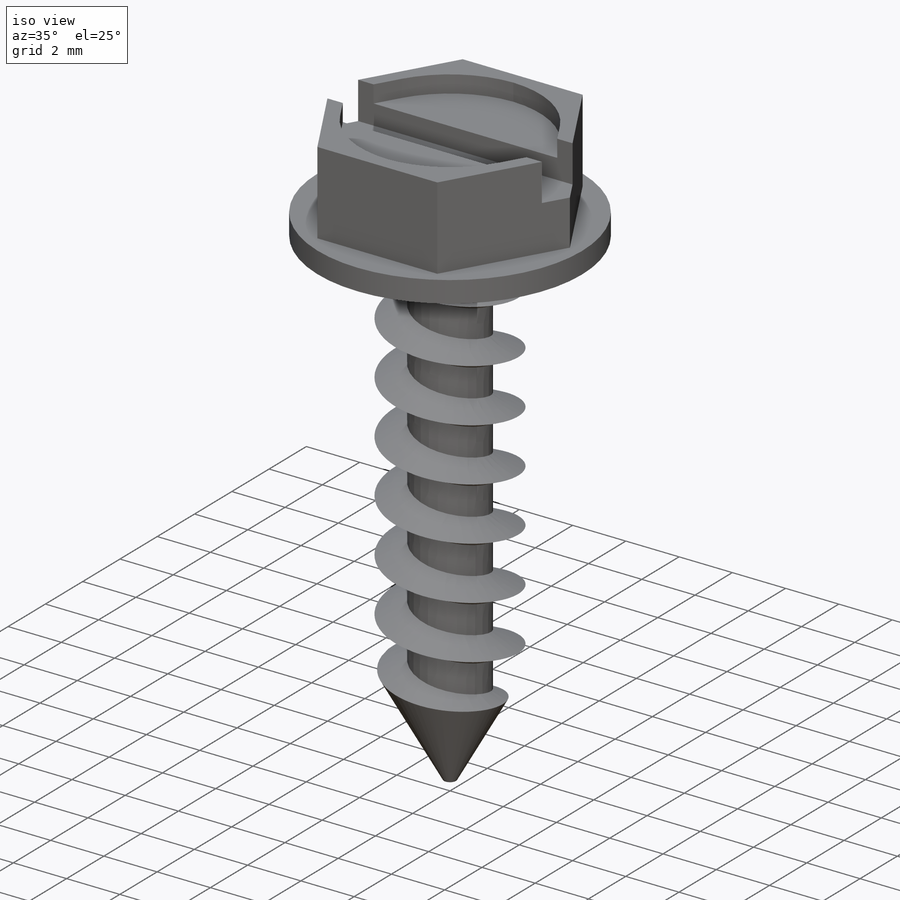
[diagram: iso view]
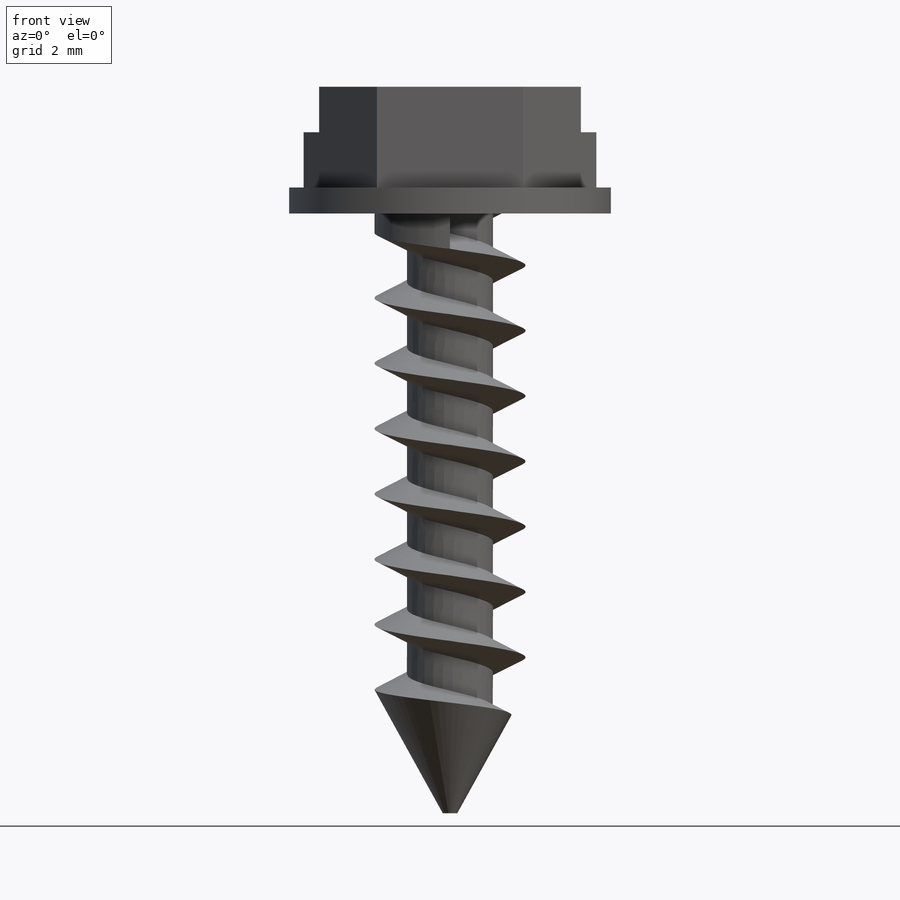
[diagram: front view]
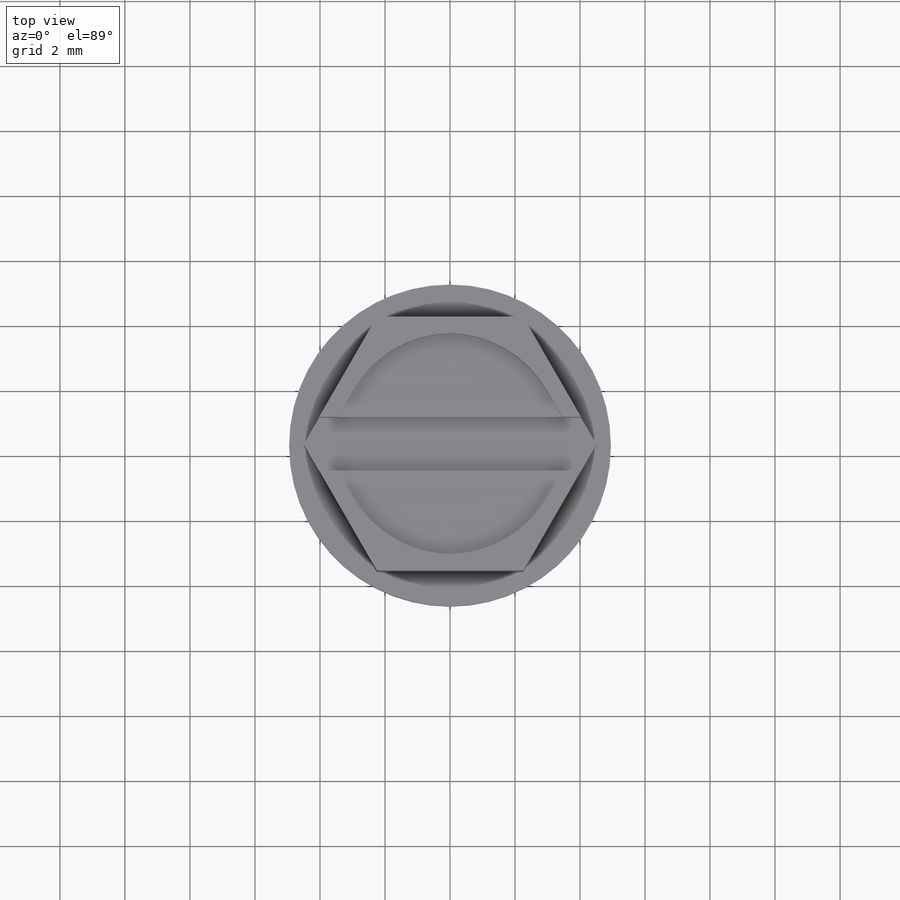
[diagram: top view]
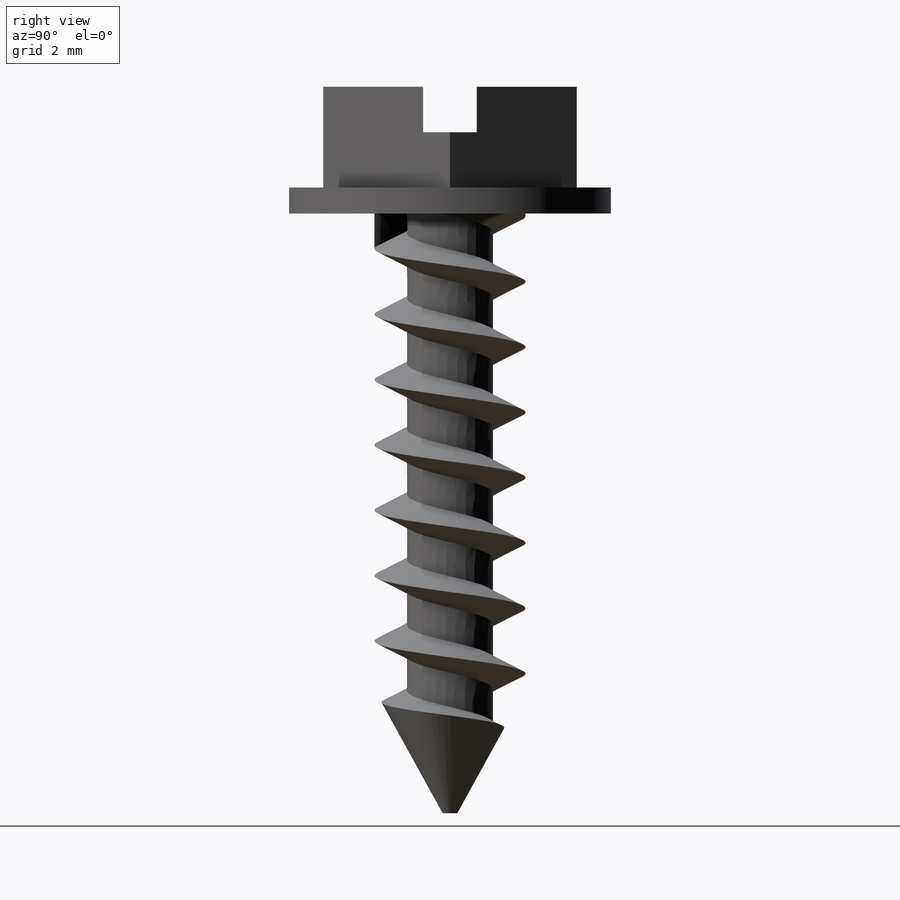
[diagram: right view]
SOLIDWORKS PART (.sldprt)
format: sldprt  version: not decoded by parser v0  size: 593,408 bytes
history: native  units: mm
features: sketch x13, plane x6, extrude x3, cut_extrude x2, helix x2, material x1, fillet x1, sweep x1 (+8 scaffold rows collapsed)
feature tree (37):
  scaffold x8  (default folders/planes/origin — collapsed)
  material  "Material <sin especificar>"
  plane  "Alzado"
  plane  "Planta"
  plane  "Vista lateral"
  sketch  "Croquis1"  dims[D1=9.9mm]
  extrude  "Saliente-Extruir1"  Depth=0.8mm
  sketch  "Croquis2"  dims[D1=7.8mm]
  extrude  "Saliente-Extruir2"  Depth=3.1mm
  sketch  "Croquis3"  dims[D1=0.5mm]
  cut_extrude  "Cortar-Extruir1"  Depth=0.65mm
  sketch  "Croquis4"  dims[D1=1.65mm D2=0.825mm]
  cut_extrude  "Cortar-Extruir2"  Depth=1.4mm
  fillet  "Redondeo1"  Radius=3.5mm
  sketch  "Croquis5"  dims[D1=4.65mm]
  extrude  "Saliente-Extruir3"  Depth=14.65mm
  plane  "Plano1"  Offset=18.85mm
  sketch  "Croquis6"  dims[c1.D1=1.45mm c2.D1=0.45mm]
  sketch  "Croquis7"  dims[D1=0.0mm]
  sketch  "Croquis8"
  plane  "Plano2"
  sketch  "Croquis11"  dims[D1=4.65mm]
  helix  "Hélice/Espiral1"  Pitch=14.65mm
  sketch  "Croquis13"  dims[D1=4.65mm]
  helix  "Hélice/Espiral2"  Pitch=3.8mm
  sketch  "Croquis15"  dims[D1=2.0mm D2=1.05mm D3=1.0mm]
  sweep  "Cortar-Barrer2"
  sketch  "Croquis20"  dims[D1=0.0mm]
  plane  "Plano3"
  sketch  "Croquis21"  dims[c1.D1=0.45mm c1.D2=0.5mm c1.D3=0.2625mm c2.D1=0.1mm c2.D2=0.1mm c3.D1=2.0mm c3.D2=1.0mm c3.D3=1.05mm c4.D1=~0.731113mm c5.D1=35.18deg c5.D2=~0.388412mm c6.D2=~91.550802deg c7.D2=~0.66662mm c8.D2=93.49deg c8.D3=~0.309611mm c9.D3=115.41deg c9.D4=~0.484123mm c10.D4=115.92deg c11.D4=1.11mm c11.D5=1.05mm c11.D6=~1.818437mm c11.D1=1.11mm c11.D2=~1.818437mm c11.D3=1.05mm c12.D4=~0.132322mm c12.D5=1.05mm c13.D5=115.41deg c13.D6=~1.591977mm c14.D6=93.49deg c14.D7=~0.99834mm c15.D7=115.92deg]
decode coverage: 20 of 22 modeling features carry decoded parameters
note: ~ marks probable driven/reference dimensions
note: suppression state not decoded; provenance and decode notes live in map.json
